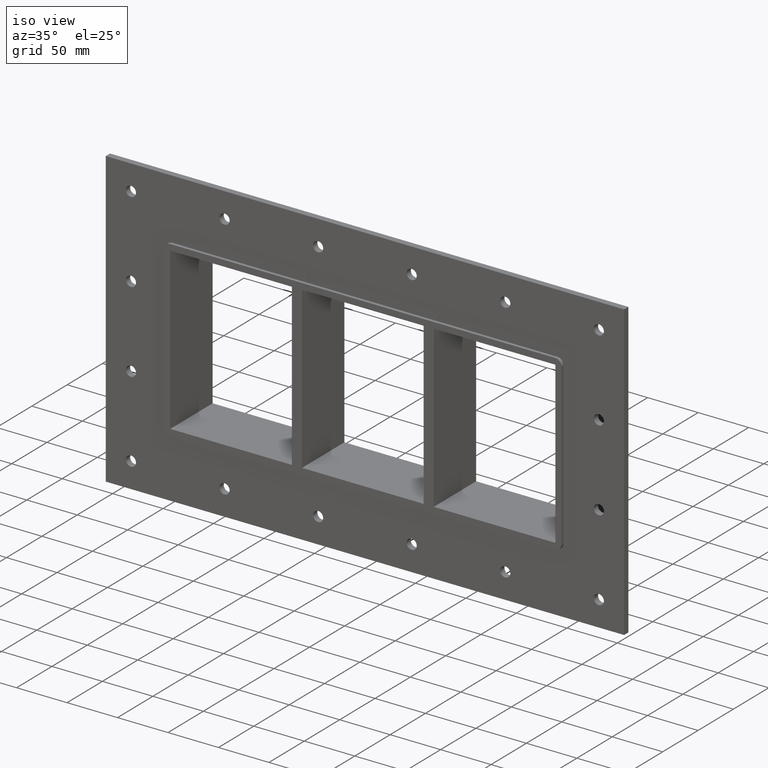
[diagram: clean part render]
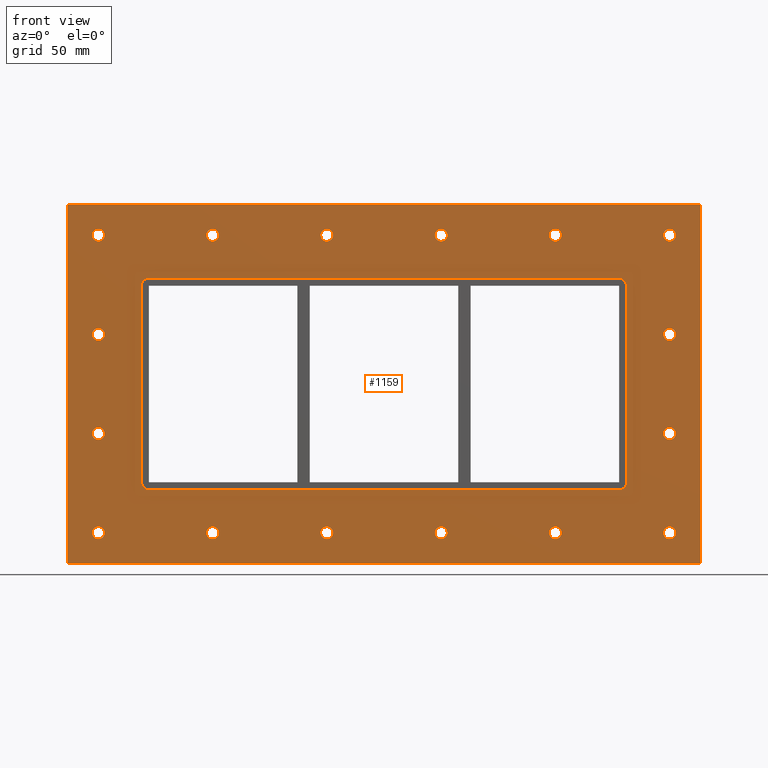
[diagram: tour spotlight — one face highlighted and labeled with its STEP entity id]
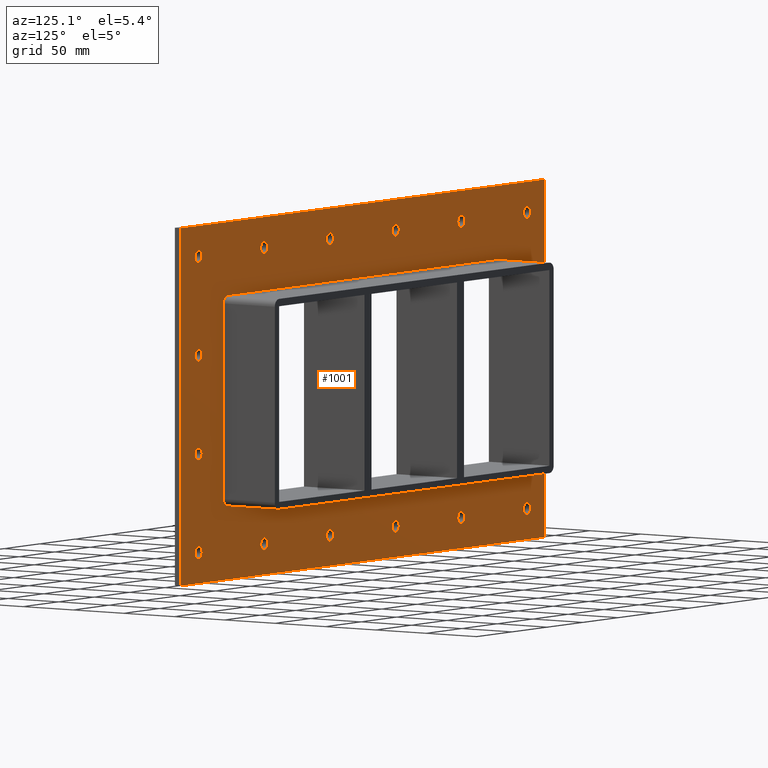
[diagram: tour spotlight — one face highlighted and labeled with its STEP entity id]
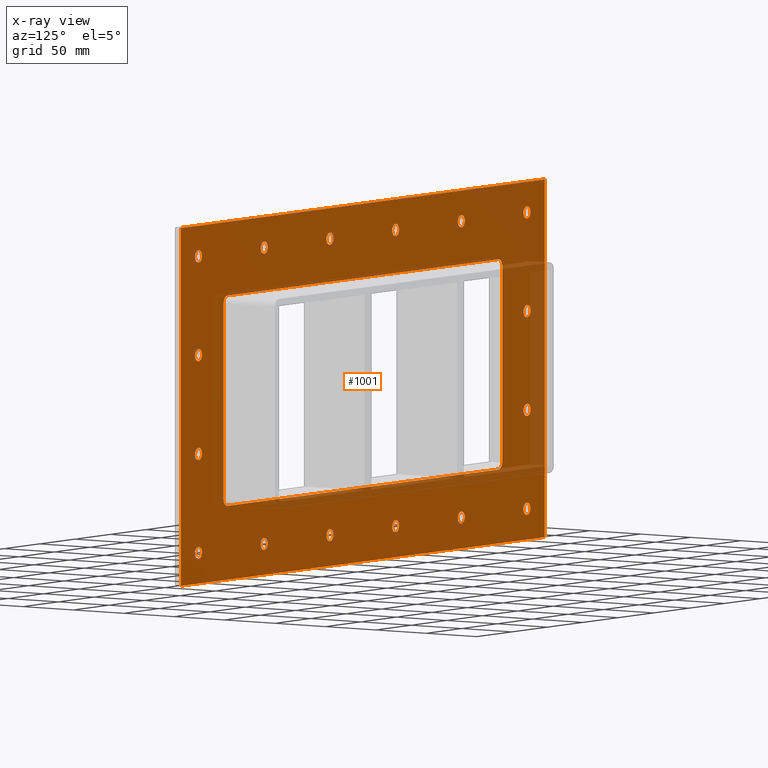
[diagram: x-ray of the same camera — body ghosted, this tour face saturated]
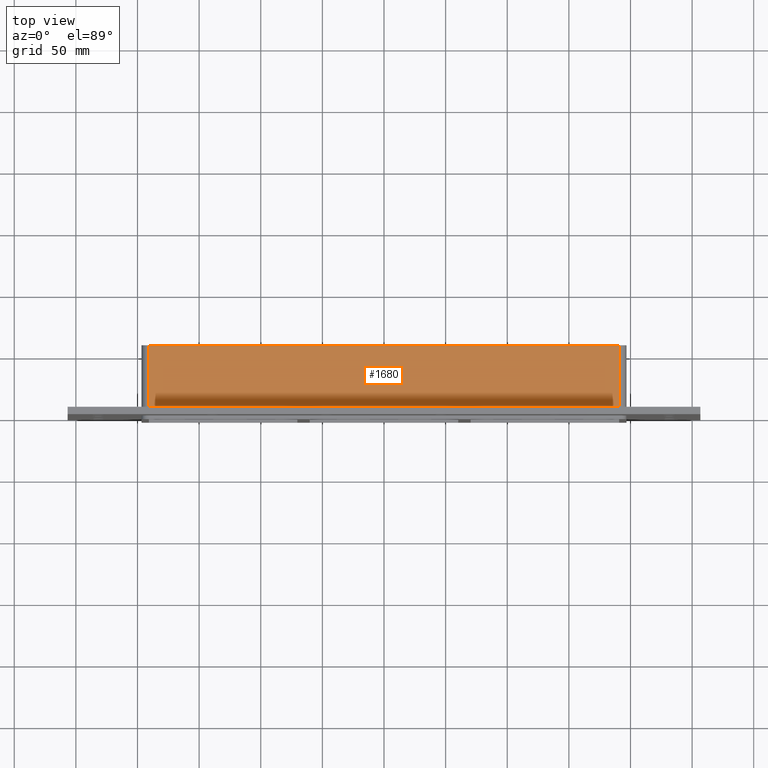
[diagram: tour spotlight — one face highlighted and labeled with its STEP entity id]
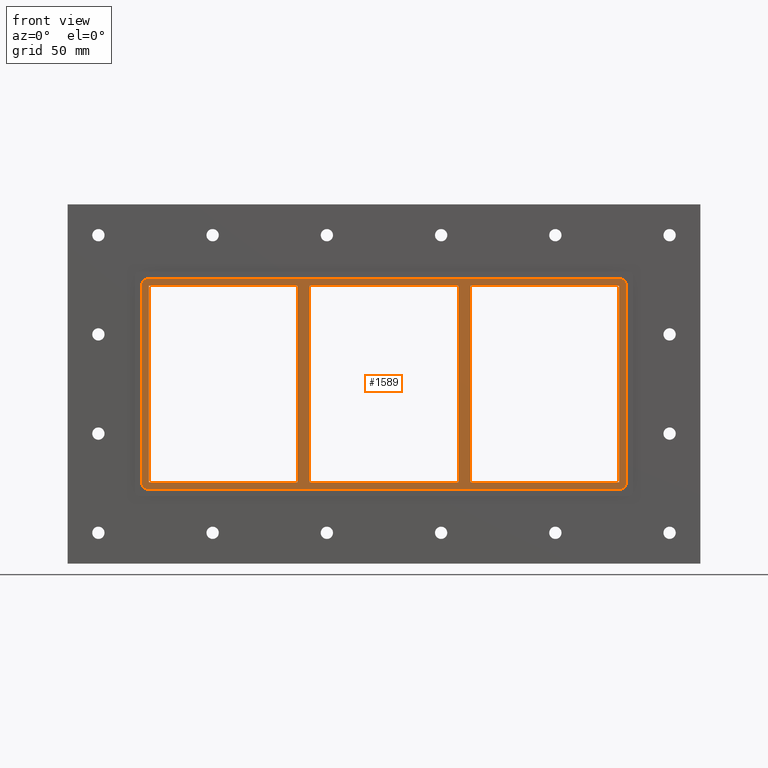
[diagram: tour spotlight — one face highlighted and labeled with its STEP entity id]
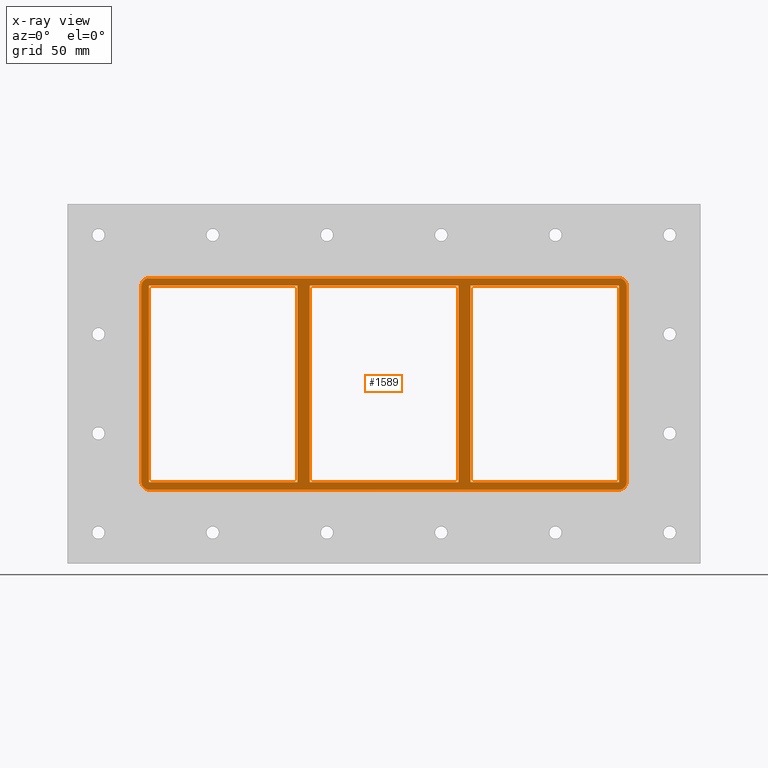
[diagram: x-ray of the same camera — body ghosted, this tour face saturated]
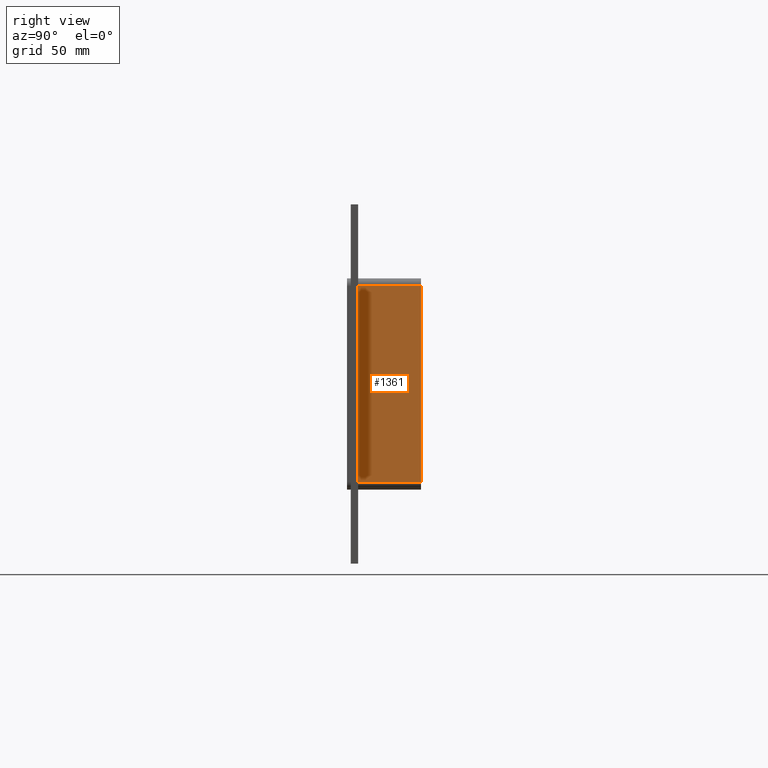
[diagram: tour spotlight — one face highlighted and labeled with its STEP entity id]
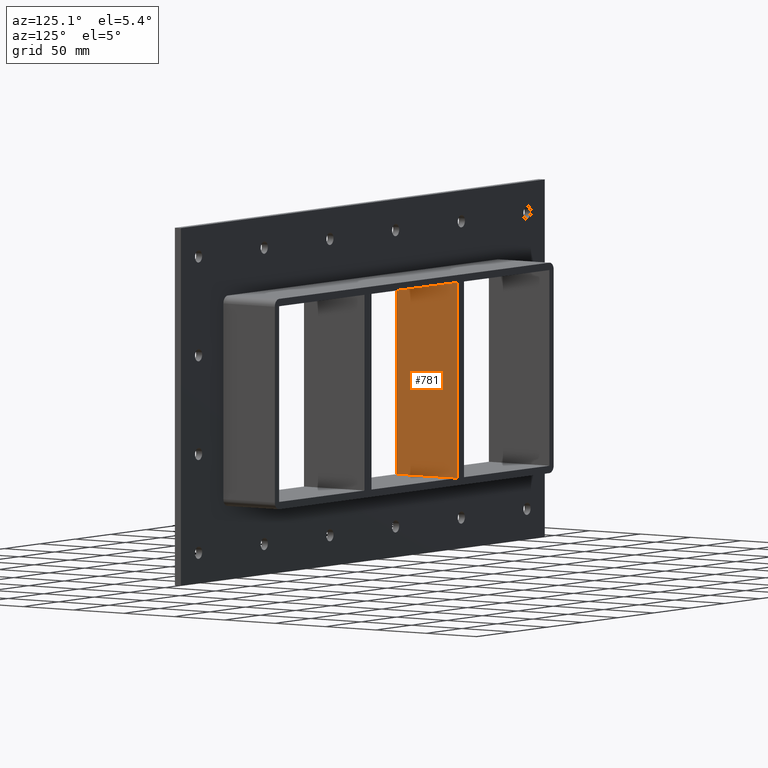
[diagram: tour spotlight — one face highlighted and labeled with its STEP entity id]
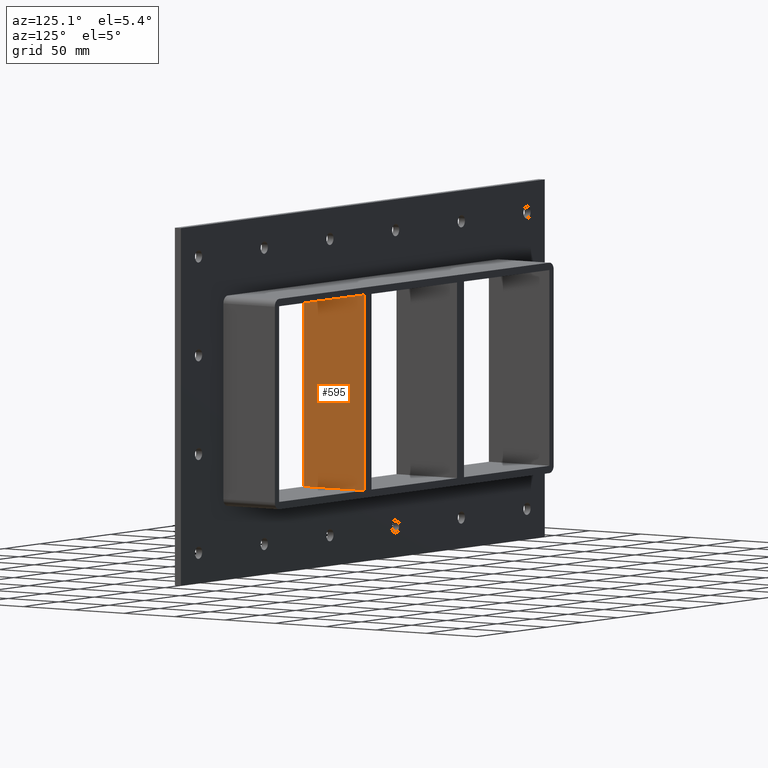
[diagram: tour spotlight — one face highlighted and labeled with its STEP entity id]
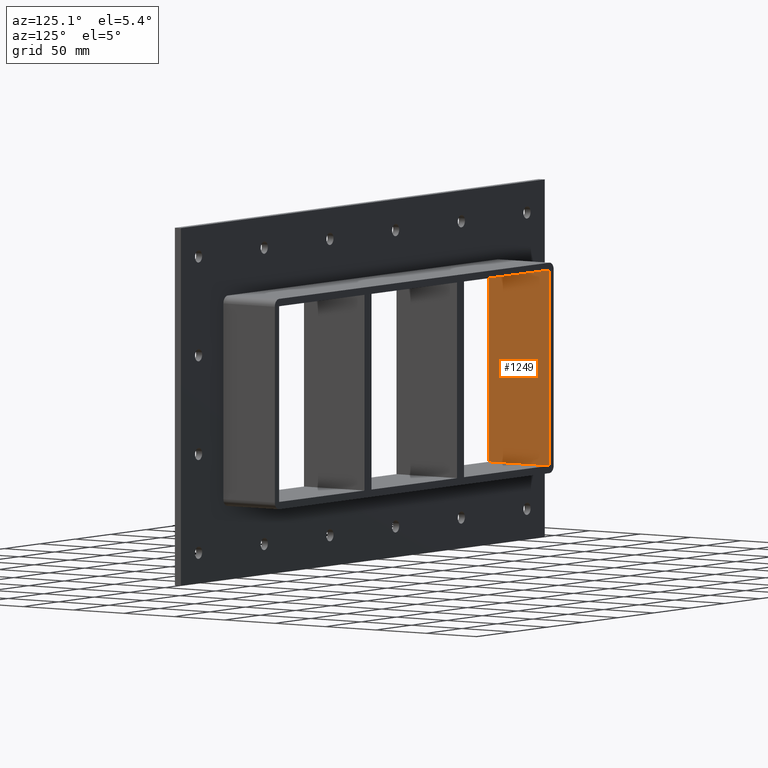
[diagram: tour spotlight — one face highlighted and labeled with its STEP entity id]
A machine part: a face-by-face anatomy tour. The part has 52 B-rep faces; the first image is the clean iso view, then the 8 largest visible faces are spotlighted one at a time (largest first), each with its STEP entity span.

Face 1 — front view, entity #1159. In plain terms, the highlighted planar face has unit normal (0, 1, 0).
Definition (entity closure, byte-faithful):
#84=CARTESIAN_POINT('',(-226.75000000000023,0.0,-120.75));
#85=VERTEX_POINT('',#84);
#86=CARTESIAN_POINT('',(-231.75000000000023,0.0,-120.75));
#87=DIRECTION('',(0.0,1.0,0.0));
#88=DIRECTION('',(1.0,0.0,0.0));
#89=AXIS2_PLACEMENT_3D('',#86,#87,#88);
#90=CIRCLE('',#89,5.0);
#91=EDGE_CURVE('',#85,#85,#90,.T.);
#112=CARTESIAN_POINT('',(236.74999999999986,0.0,-40.249999999999986));
#113=VERTEX_POINT('',#112);
#114=CARTESIAN_POINT('',(231.74999999999986,0.0,-40.249999999999986));
#115=DIRECTION('',(0.0,1.0,0.0));
#116=DIRECTION('',(1.0,0.0,0.0));
#117=AXIS2_PLACEMENT_3D('',#114,#115,#116);
#118=CIRCLE('',#117,5.0);
#119=EDGE_CURVE('',#113,#113,#118,.T.);
#140=CARTESIAN_POINT('',(-226.75000000000023,0.0,-40.249999999999986));
#141=VERTEX_POINT('',#140);
#142=CARTESIAN_POINT('',(-231.75000000000023,0.0,-40.249999999999986));
#143=DIRECTION('',(0.0,1.0,0.0));
#144=DIRECTION('',(1.0,0.0,0.0));
#145=AXIS2_PLACEMENT_3D('',#142,#143,#144);
#146=CIRCLE('',#145,5.0);
#147=EDGE_CURVE('',#141,#141,#146,.T.);
#168=CARTESIAN_POINT('',(236.74999999999986,0.0,40.250000000000021));
#169=VERTEX_POINT('',#168);
#170=CARTESIAN_POINT('',(231.74999999999986,0.0,40.250000000000021));
#171=DIRECTION('',(0.0,1.0,0.0));
#172=DIRECTION('',(1.0,0.0,0.0));
#173=AXIS2_PLACEMENT_3D('',#170,#171,#172);
#174=CIRCLE('',#173,5.0);
#175=EDGE_CURVE('',#169,#169,#174,.T.);
#196=CARTESIAN_POINT('',(-226.75000000000023,0.0,40.250000000000021));
#197=VERTEX_POINT('',#196);
#198=CARTESIAN_POINT('',(-231.75000000000023,0.0,40.250000000000021));
#199=DIRECTION('',(0.0,1.0,0.0));
#200=DIRECTION('',(1.0,0.0,0.0));
#201=AXIS2_PLACEMENT_3D('',#198,#199,#200);
#202=CIRCLE('',#201,5.0);
#203=EDGE_CURVE('',#197,#197,#202,.T.);
#224=CARTESIAN_POINT('',(-134.05000000000018,0.0,120.75000000000003));
#225=VERTEX_POINT('',#224);
#226=CARTESIAN_POINT('',(-139.05000000000018,0.0,120.75000000000003));
#227=DIRECTION('',(0.0,1.0,0.0));
#228=DIRECTION('',(1.0,0.0,0.0));
#229=AXIS2_PLACEMENT_3D('',#226,#227,#228);
#230=CIRCLE('',#229,5.0);
#231=EDGE_CURVE('',#225,#225,#230,.T.);
#252=CARTESIAN_POINT('',(-134.05000000000018,0.0,-120.75));
#253=VERTEX_POINT('',#252);
#254=CARTESIAN_POINT('',(-139.05000000000018,0.0,-120.75));
#255=DIRECTION('',(0.0,1.0,0.0));
#256=DIRECTION('',(1.0,0.0,0.0));
#257=AXIS2_PLACEMENT_3D('',#254,#255,#256);
#258=CIRCLE('',#257,5.0);
#259=EDGE_CURVE('',#253,#253,#258,.T.);
#280=CARTESIAN_POINT('',(-41.350000000000136,0.0,120.75000000000003));
#281=VERTEX_POINT('',#280);
#282=CARTESIAN_POINT('',(-46.350000000000136,0.0,120.75000000000003));
#283=DIRECTION('',(0.0,1.0,0.0));
#284=DIRECTION('',(1.0,0.0,0.0));
#285=AXIS2_PLACEMENT_3D('',#282,#283,#284);
#286=CIRCLE('',#285,5.0);
#287=EDGE_CURVE('',#281,#281,#286,.T.);
#308=CARTESIAN_POINT('',(-41.350000000000136,0.0,-120.75));
#309=VERTEX_POINT('',#308);
#310=CARTESIAN_POINT('',(-46.350000000000136,0.0,-120.75));
#311=DIRECTION('',(0.0,1.0,0.0));
#312=DIRECTION('',(1.0,0.0,0.0));
#313=AXIS2_PLACEMENT_3D('',#310,#311,#312);
#314=CIRCLE('',#313,5.0);
#315=EDGE_CURVE('',#309,#309,#314,.T.);
#336=CARTESIAN_POINT('',(51.349999999999838,0.0,120.75000000000003));
#337=VERTEX_POINT('',#336);
#338=CARTESIAN_POINT('',(46.349999999999838,0.0,120.75000000000003));
#339=DIRECTION('',(0.0,1.0,0.0));
#340=DIRECTION('',(1.0,0.0,0.0));
#341=AXIS2_PLACEMENT_3D('',#338,#339,#340);
#342=CIRCLE('',#341,5.0);
#343=EDGE_CURVE('',#337,#337,#342,.T.);
#364=CARTESIAN_POINT('',(51.349999999999838,0.0,-120.75));
#365=VERTEX_POINT('',#364);
#366=CARTESIAN_POINT('',(46.349999999999838,0.0,-120.75));
#367=DIRECTION('',(0.0,1.0,0.0));
#368=DIRECTION('',(1.0,0.0,0.0));
#369=AXIS2_PLACEMENT_3D('',#366,#367,#368);
#370=CIRCLE('',#369,5.0);
#371=EDGE_CURVE('',#365,#365,#370,.T.);
#392=CARTESIAN_POINT('',(144.04999999999984,0.0,120.75000000000003));
#393=VERTEX_POINT('',#392);
#394=CARTESIAN_POINT('',(139.04999999999984,0.0,120.75000000000003));
#395=DIRECTION('',(0.0,1.0,0.0));
#396=DIRECTION('',(1.0,0.0,0.0));
#397=AXIS2_PLACEMENT_3D('',#394,#395,#396);
#398=CIRCLE('',#397,5.0);
#399=EDGE_CURVE('',#393,#393,#398,.T.);
#420=CARTESIAN_POINT('',(144.04999999999984,0.0,-120.75));
#421=VERTEX_POINT('',#420);
#422=CARTESIAN_POINT('',(139.04999999999984,0.0,-120.75));
#423=DIRECTION('',(0.0,1.0,0.0));
#424=DIRECTION('',(1.0,0.0,0.0));
#425=AXIS2_PLACEMENT_3D('',#422,#423,#424);
#426=CIRCLE('',#425,5.0);
#427=EDGE_CURVE('',#421,#421,#426,.T.);
#448=CARTESIAN_POINT('',(236.74999999999986,0.0,-120.75));
#449=VERTEX_POINT('',#448);
#450=CARTESIAN_POINT('',(231.74999999999986,0.0,-120.75));
#451=DIRECTION('',(0.0,1.0,0.0));
#452=DIRECTION('',(1.0,0.0,0.0));
#453=AXIS2_PLACEMENT_3D('',#450,#451,#452);
#454=CIRCLE('',#453,5.0);
#455=EDGE_CURVE('',#449,#449,#454,.T.);
#476=CARTESIAN_POINT('',(-226.75000000000023,0.0,120.75000000000003));
#477=VERTEX_POINT('',#476);
#478=CARTESIAN_POINT('',(-231.75000000000023,0.0,120.75000000000003));
#479=DIRECTION('',(0.0,1.0,0.0));
#480=DIRECTION('',(1.0,0.0,0.0));
#481=AXIS2_PLACEMENT_3D('',#478,#479,#480);
#482=CIRCLE('',#481,5.0);
#483=EDGE_CURVE('',#477,#477,#482,.T.);
#504=CARTESIAN_POINT('',(236.74999999999986,0.0,120.75000000000003));
#505=VERTEX_POINT('',#504);
#506=CARTESIAN_POINT('',(231.74999999999986,0.0,120.75000000000003));
#507=DIRECTION('',(0.0,1.0,0.0));
#508=DIRECTION('',(1.0,0.0,0.0));
#509=AXIS2_PLACEMENT_3D('',#506,#507,#508);
#510=CIRCLE('',#509,5.0);
#511=EDGE_CURVE('',#505,#505,#510,.T.);
#1002=CARTESIAN_POINT('',(1.588791E-014,0.0,1.059194E-014));
#1003=DIRECTION('',(0.0,1.0,0.0));
#1004=DIRECTION('',(0.0,0.0,1.0));
#1005=AXIS2_PLACEMENT_3D('',#1002,#1003,#1004);
#1006=PLANE('',#1005);
#1007=CARTESIAN_POINT('',(-256.75000000000006,0.0,145.75));
#1008=VERTEX_POINT('',#1007);
#1009=CARTESIAN_POINT('',(256.75000000000011,0.0,145.75));
#1010=VERTEX_POINT('',#1009);
#1011=CARTESIAN_POINT('',(-256.75000000000006,0.0,145.75));
#1012=DIRECTION('',(1.0,0.0,0.0));
#1013=VECTOR('',#1012,513.50000000000023);
#1014=LINE('',#1011,#1013);
#1015=EDGE_CURVE('',#1008,#1010,#1014,.T.);
#1016=ORIENTED_EDGE('',*,*,#1015,.F.);
#1017=CARTESIAN_POINT('',(-256.75000000000006,0.0,-145.75));
#1018=VERTEX_POINT('',#1017);
#1019=CARTESIAN_POINT('',(-256.75000000000006,0.0,-145.75));
#1020=DIRECTION('',(0.0,0.0,1.0));
#1021=VECTOR('',#1020,291.5);
#1022=LINE('',#1019,#1021);
#1023=EDGE_CURVE('',#1018,#1008,#1022,.T.);
#1024=ORIENTED_EDGE('',*,*,#1023,.F.);
#1025=CARTESIAN_POINT('',(256.75000000000011,0.0,-145.75));
#1026=VERTEX_POINT('',#1025);
#1027=CARTESIAN_POINT('',(256.75000000000011,0.0,-145.75));
#1028=DIRECTION('',(-1.0,0.0,0.0));
#1029=VECTOR('',#1028,513.50000000000023);
#1030=LINE('',#1027,#1029);
#1031=EDGE_CURVE('',#1026,#1018,#1030,.T.);
#1032=ORIENTED_EDGE('',*,*,#1031,.F.);
#1033=CARTESIAN_POINT('',(256.75000000000011,0.0,145.75));
#1034=DIRECTION('',(0.0,0.0,-1.0));
#1035=VECTOR('',#1034,291.5);
#1036=LINE('',#1033,#1035);
#1037=EDGE_CURVE('',#1010,#1026,#1036,.T.);
#1038=ORIENTED_EDGE('',*,*,#1037,.F.);
#1039=EDGE_LOOP('',(#1016,#1024,#1032,#1038));
#1040=FACE_OUTER_BOUND('',#1039,.T.);
#1041=ORIENTED_EDGE('',*,*,#91,.T.);
#1042=EDGE_LOOP('',(#1041));
#1043=FACE_BOUND('',#1042,.T.);
#1044=ORIENTED_EDGE('',*,*,#119,.T.);
#1045=EDGE_LOOP('',(#1044));
#1046=FACE_BOUND('',#1045,.T.);
#1047=ORIENTED_EDGE('',*,*,#147,.T.);
#1048=EDGE_LOOP('',(#1047));
#1049=FACE_BOUND('',#1048,.T.);
#1050=ORIENTED_EDGE('',*,*,#175,.T.);
#1051=EDGE_LOOP('',(#1050));
#1052=FACE_BOUND('',#1051,.T.);
#1053=ORIENTED_EDGE('',*,*,#203,.T.);
#1054=EDGE_LOOP('',(#1053));
#1055=FACE_BOUND('',#1054,.T.);
#1056=ORIENTED_EDGE('',*,*,#231,.T.);
#1057=EDGE_LOOP('',(#1056));
#1058=FACE_BOUND('',#1057,.T.);
#1059=ORIENTED_EDGE('',*,*,#259,.T.);
#1060=EDGE_LOOP('',(#1059));
#1061=FACE_BOUND('',#1060,.T.);
#1062=ORIENTED_EDGE('',*,*,#287,.T.);
#1063=EDGE_LOOP('',(#1062));
#1064=FACE_BOUND('',#1063,.T.);
#1065=ORIENTED_EDGE('',*,*,#315,.T.);
#1066=EDGE_LOOP('',(#1065));
#1067=FACE_BOUND('',#1066,.T.);
#1068=ORIENTED_EDGE('',*,*,#343,.T.);
#1069=EDGE_LOOP('',(#1068));
#1070=FACE_BOUND('',#1069,.T.);
#1071=ORIENTED_EDGE('',*,*,#371,.T.);
#1072=EDGE_LOOP('',(#1071));
#1073=FACE_BOUND('',#1072,.T.);
#1074=ORIENTED_EDGE('',*,*,#399,.T.);
#1075=EDGE_LOOP('',(#1074));
#1076=FACE_BOUND('',#1075,.T.);
#1077=ORIENTED_EDGE('',*,*,#427,.T.);
#1078=EDGE_LOOP('',(#1077));
#1079=FACE_BOUND('',#1078,.T.);
#1080=ORIENTED_EDGE('',*,*,#455,.T.);
#1081=EDGE_LOOP('',(#1080));
#1082=FACE_BOUND('',#1081,.T.);
#1083=ORIENTED_EDGE('',*,*,#483,.T.);
#1084=EDGE_LOOP('',(#1083));
#1085=FACE_BOUND('',#1084,.T.);
#1086=ORIENTED_EDGE('',*,*,#511,.T.);
#1087=EDGE_LOOP('',(#1086));
#1088=FACE_BOUND('',#1087,.T.);
#1089=CARTESIAN_POINT('',(-196.75000000000006,0.0,-79.750000000000028));
#1090=VERTEX_POINT('',#1089);
#1091=CARTESIAN_POINT('',(-190.75000000000003,0.0,-85.750000000000028));
#1092=VERTEX_POINT('',#1091);
#1093=CARTESIAN_POINT('',(-190.75000000000003,0.0,-79.750000000000028));
#1094=DIRECTION('',(0.0,-1.0,0.0));
#1095=DIRECTION('',(-0.707106781186549,0.0,-0.707106781186546));
#1096=AXIS2_PLACEMENT_3D('',#1093,#1094,#1095);
#1097=CIRCLE('',#1096,6.000000000000001);
#1098=EDGE_CURVE('',#1090,#1092,#1097,.T.);
#1099=ORIENTED_EDGE('',*,*,#1098,.F.);
#1100=CARTESIAN_POINT('',(-196.75000000000006,0.0,79.750000000000028));
#1101=VERTEX_POINT('',#1100);
#1102=CARTESIAN_POINT('',(-196.75000000000006,0.0,79.750000000000028));
#1103=DIRECTION('',(0.0,0.0,-1.0));
#1104=VECTOR('',#1103,159.50000000000006);
#1105=LINE('',#1102,#1104);
#1106=EDGE_CURVE('',#1101,#1090,#1105,.T.);
#1107=ORIENTED_EDGE('',*,*,#1106,.F.);
#1108=CARTESIAN_POINT('',(-190.75000000000003,0.0,85.750000000000028));
#1109=VERTEX_POINT('',#1108);
#1110=CARTESIAN_POINT('',(-190.75000000000003,0.0,79.750000000000028));
#1111=DIRECTION('',(0.0,-1.0,0.0));
#1112=DIRECTION('',(-0.707106781186549,0.0,0.707106781186546));
#1113=AXIS2_PLACEMENT_3D('',#1110,#1111,#1112);
#1114=CIRCLE('',#1113,6.000000000000001);
#1115=EDGE_CURVE('',#1109,#1101,#1114,.T.);
#1116=ORIENTED_EDGE('',*,*,#1115,.F.);
#1117=CARTESIAN_POINT('',(190.75000000000003,0.0,85.750000000000028));
#1118=VERTEX_POINT('',#1117);
#1119=CARTESIAN_POINT('',(190.75000000000003,0.0,85.750000000000028));
#1120=DIRECTION('',(-1.0,0.0,0.0));
#1121=VECTOR('',#1120,381.50000000000006);
#1122=LINE('',#1119,#1121);
#1123=EDGE_CURVE('',#1118,#1109,#1122,.T.);
#1124=ORIENTED_EDGE('',*,*,#1123,.F.);
#1125=CARTESIAN_POINT('',(196.75000000000006,0.0,79.750000000000028));
#1126=VERTEX_POINT('',#1125);
#1127=CARTESIAN_POINT('',(190.75000000000003,0.0,79.750000000000028));
#1128=DIRECTION('',(0.0,-1.0,0.0));
#1129=DIRECTION('',(0.70710678118655,0.0,0.707106781186545));
#1130=AXIS2_PLACEMENT_3D('',#1127,#1128,#1129);
#1131=CIRCLE('',#1130,6.000000000000001);
#1132=EDGE_CURVE('',#1126,#1118,#1131,.T.);
#1133=ORIENTED_EDGE('',*,*,#1132,.F.);
#1134=CARTESIAN_POINT('',(196.75000000000006,0.0,-79.750000000000028));
#1135=VERTEX_POINT('',#1134);
#1136=CARTESIAN_POINT('',(196.75000000000006,0.0,-79.750000000000028));
#1137=DIRECTION('',(0.0,0.0,1.0));
#1138=VECTOR('',#1137,159.50000000000006);
#1139=LINE('',#1136,#1138);
#1140=EDGE_CURVE('',#1135,#1126,#1139,.T.);
#1141=ORIENTED_EDGE('',*,*,#1140,.F.);
#1142=CARTESIAN_POINT('',(190.75000000000003,0.0,-85.750000000000028));
#1143=VERTEX_POINT('',#1142);
#1144=CARTESIAN_POINT('',(190.75000000000003,0.0,-79.750000000000028));
#1145=DIRECTION('',(0.0,-1.0,0.0));
#1146=DIRECTION('',(0.707106781186549,0.0,-0.707106781186546));
#1147=AXIS2_PLACEMENT_3D('',#1144,#1145,#1146);
#1148=CIRCLE('',#1147,6.000000000000001);
#1149=EDGE_CURVE('',#1143,#1135,#1148,.T.);
#1150=ORIENTED_EDGE('',*,*,#1149,.F.);
#1151=CARTESIAN_POINT('',(-190.75000000000003,0.0,-85.750000000000028));
#1152=DIRECTION('',(1.0,0.0,0.0));
#1153=VECTOR('',#1152,381.50000000000006);
#1154=LINE('',#1151,#1153);
#1155=EDGE_CURVE('',#1092,#1143,#1154,.T.);
#1156=ORIENTED_EDGE('',*,*,#1155,.F.);
#1157=EDGE_LOOP('',(#1099,#1107,#1116,#1124,#1133,#1141,#1150,#1156));
#1158=FACE_BOUND('',#1157,.T.);
#1159=ADVANCED_FACE('',(#1040,#1043,#1046,#1049,#1052,#1055,#1058,#1061,#1064,#1067,#1070,#1073,#1076,#1079,#1082,#1085,#1088,#1158),#1006,.F.);

Face 2 — auxiliary view, entity #1001. An x-ray twin of the same camera follows (body ghosted, this face saturated) — the face is partly hidden behind the body. In plain terms, the highlighted planar face has unit normal (0, 1, 0).
Definition (entity closure, byte-faithful):
#73=CARTESIAN_POINT('',(-236.75000000000023,6.000000000000014,-120.75));
#74=VERTEX_POINT('',#73);
#75=CARTESIAN_POINT('',(-231.75000000000023,6.000000000000014,-120.75));
#76=DIRECTION('',(0.0,-1.0,0.0));
#77=DIRECTION('',(1.0,0.0,0.0));
#78=AXIS2_PLACEMENT_3D('',#75,#76,#77);
#79=CIRCLE('',#78,5.0);
#80=EDGE_CURVE('',#74,#74,#79,.T.);
#101=CARTESIAN_POINT('',(226.74999999999986,6.000000000000014,-40.249999999999986));
#102=VERTEX_POINT('',#101);
#103=CARTESIAN_POINT('',(231.74999999999986,6.000000000000014,-40.249999999999986));
#104=DIRECTION('',(0.0,-1.0,0.0));
#105=DIRECTION('',(1.0,0.0,0.0));
#106=AXIS2_PLACEMENT_3D('',#103,#104,#105);
#107=CIRCLE('',#106,5.0);
#108=EDGE_CURVE('',#102,#102,#107,.T.);
#129=CARTESIAN_POINT('',(-236.75000000000023,6.000000000000014,-40.249999999999986));
#130=VERTEX_POINT('',#129);
#131=CARTESIAN_POINT('',(-231.75000000000023,6.000000000000014,-40.249999999999986));
#132=DIRECTION('',(0.0,-1.0,0.0));
#133=DIRECTION('',(1.0,0.0,0.0));
#134=AXIS2_PLACEMENT_3D('',#131,#132,#133);
#135=CIRCLE('',#134,5.0);
#136=EDGE_CURVE('',#130,#130,#135,.T.);
#157=CARTESIAN_POINT('',(226.74999999999986,6.000000000000014,40.250000000000021));
#158=VERTEX_POINT('',#157);
#159=CARTESIAN_POINT('',(231.74999999999986,6.000000000000014,40.250000000000021));
#160=DIRECTION('',(0.0,-1.0,0.0));
#161=DIRECTION('',(1.0,0.0,0.0));
#162=AXIS2_PLACEMENT_3D('',#159,#160,#161);
#163=CIRCLE('',#162,5.0);
#164=EDGE_CURVE('',#158,#158,#163,.T.);
#185=CARTESIAN_POINT('',(-236.75000000000023,6.000000000000014,40.250000000000021));
#186=VERTEX_POINT('',#185);
#187=CARTESIAN_POINT('',(-231.75000000000023,6.000000000000014,40.250000000000021));
#188=DIRECTION('',(0.0,-1.0,0.0));
#189=DIRECTION('',(1.0,0.0,0.0));
#190=AXIS2_PLACEMENT_3D('',#187,#188,#189);
#191=CIRCLE('',#190,5.0);
#192=EDGE_CURVE('',#186,#186,#191,.T.);
#213=CARTESIAN_POINT('',(-144.05000000000018,6.000000000000014,120.75000000000003));
#214=VERTEX_POINT('',#213);
#215=CARTESIAN_POINT('',(-139.05000000000018,6.000000000000014,120.75000000000003));
#216=DIRECTION('',(0.0,-1.0,0.0));
#217=DIRECTION('',(1.0,0.0,0.0));
#218=AXIS2_PLACEMENT_3D('',#215,#216,#217);
#219=CIRCLE('',#218,5.0);
#220=EDGE_CURVE('',#214,#214,#219,.T.);
#241=CARTESIAN_POINT('',(-144.05000000000018,6.000000000000014,-120.75));
#242=VERTEX_POINT('',#241);
#243=CARTESIAN_POINT('',(-139.05000000000018,6.000000000000014,-120.75));
#244=DIRECTION('',(0.0,-1.0,0.0));
#245=DIRECTION('',(1.0,0.0,0.0));
#246=AXIS2_PLACEMENT_3D('',#243,#244,#245);
#247=CIRCLE('',#246,5.0);
#248=EDGE_CURVE('',#242,#242,#247,.T.);
#269=CARTESIAN_POINT('',(-51.350000000000136,6.000000000000014,120.75000000000003));
#270=VERTEX_POINT('',#269);
#271=CARTESIAN_POINT('',(-46.350000000000136,6.000000000000014,120.75000000000003));
#272=DIRECTION('',(0.0,-1.0,0.0));
#273=DIRECTION('',(1.0,0.0,0.0));
#274=AXIS2_PLACEMENT_3D('',#271,#272,#273);
#275=CIRCLE('',#274,5.0);
#276=EDGE_CURVE('',#270,#270,#275,.T.);
#297=CARTESIAN_POINT('',(-51.350000000000136,6.000000000000014,-120.75));
#298=VERTEX_POINT('',#297);
#299=CARTESIAN_POINT('',(-46.350000000000136,6.000000000000014,-120.75));
#300=DIRECTION('',(0.0,-1.0,0.0));
#301=DIRECTION('',(1.0,0.0,0.0));
#302=AXIS2_PLACEMENT_3D('',#299,#300,#301);
#303=CIRCLE('',#302,5.0);
#304=EDGE_CURVE('',#298,#298,#303,.T.);
#325=CARTESIAN_POINT('',(41.349999999999838,6.000000000000014,120.75000000000003));
#326=VERTEX_POINT('',#325);
#327=CARTESIAN_POINT('',(46.349999999999838,6.000000000000014,120.75000000000003));
#328=DIRECTION('',(0.0,-1.0,0.0));
#329=DIRECTION('',(1.0,0.0,0.0));
#330=AXIS2_PLACEMENT_3D('',#327,#328,#329);
#331=CIRCLE('',#330,5.0);
#332=EDGE_CURVE('',#326,#326,#331,.T.);
#353=CARTESIAN_POINT('',(41.349999999999838,6.000000000000014,-120.75));
#354=VERTEX_POINT('',#353);
#355=CARTESIAN_POINT('',(46.349999999999838,6.000000000000014,-120.75));
#356=DIRECTION('',(0.0,-1.0,0.0));
#357=DIRECTION('',(1.0,0.0,0.0));
#358=AXIS2_PLACEMENT_3D('',#355,#356,#357);
#359=CIRCLE('',#358,5.0);
#360=EDGE_CURVE('',#354,#354,#359,.T.);
#381=CARTESIAN_POINT('',(134.04999999999984,6.000000000000014,120.75000000000003));
#382=VERTEX_POINT('',#381);
#383=CARTESIAN_POINT('',(139.04999999999984,6.000000000000014,120.75000000000003));
#384=DIRECTION('',(0.0,-1.0,0.0));
#385=DIRECTION('',(1.0,0.0,0.0));
#386=AXIS2_PLACEMENT_3D('',#383,#384,#385);
#387=CIRCLE('',#386,5.0);
#388=EDGE_CURVE('',#382,#382,#387,.T.);
#409=CARTESIAN_POINT('',(134.04999999999984,6.000000000000014,-120.75));
#410=VERTEX_POINT('',#409);
#411=CARTESIAN_POINT('',(139.04999999999984,6.000000000000014,-120.75));
#412=DIRECTION('',(0.0,-1.0,0.0));
#413=DIRECTION('',(1.0,0.0,0.0));
#414=AXIS2_PLACEMENT_3D('',#411,#412,#413);
#415=CIRCLE('',#414,5.0);
#416=EDGE_CURVE('',#410,#410,#415,.T.);
#437=CARTESIAN_POINT('',(226.74999999999986,6.000000000000014,-120.75));
#438=VERTEX_POINT('',#437);
#439=CARTESIAN_POINT('',(231.74999999999986,6.000000000000014,-120.75));
#440=DIRECTION('',(0.0,-1.0,0.0));
#441=DIRECTION('',(1.0,0.0,0.0));
#442=AXIS2_PLACEMENT_3D('',#439,#440,#441);
#443=CIRCLE('',#442,5.0);
#444=EDGE_CURVE('',#438,#438,#443,.T.);
#465=CARTESIAN_POINT('',(-236.75000000000023,6.000000000000014,120.75000000000003));
#466=VERTEX_POINT('',#465);
#467=CARTESIAN_POINT('',(-231.75000000000023,6.000000000000014,120.75000000000003));
#468=DIRECTION('',(0.0,-1.0,0.0));
#469=DIRECTION('',(1.0,0.0,0.0));
#470=AXIS2_PLACEMENT_3D('',#467,#468,#469);
#471=CIRCLE('',#470,5.0);
#472=EDGE_CURVE('',#466,#466,#471,.T.);
#493=CARTESIAN_POINT('',(226.74999999999986,6.000000000000014,120.75000000000003));
#494=VERTEX_POINT('',#493);
#495=CARTESIAN_POINT('',(231.74999999999986,6.000000000000014,120.75000000000003));
#496=DIRECTION('',(0.0,-1.0,0.0));
#497=DIRECTION('',(1.0,0.0,0.0));
#498=AXIS2_PLACEMENT_3D('',#495,#496,#497);
#499=CIRCLE('',#498,5.0);
#500=EDGE_CURVE('',#494,#494,#499,.T.);
#844=CARTESIAN_POINT('',(1.588791E-014,6.000000000000001,1.059194E-014));
#845=DIRECTION('',(0.0,1.0,0.0));
#846=DIRECTION('',(0.0,0.0,1.0));
#847=AXIS2_PLACEMENT_3D('',#844,#845,#846);
#848=PLANE('',#847);
#849=CARTESIAN_POINT('',(-256.75000000000006,6.000000000000001,145.75));
#850=VERTEX_POINT('',#849);
#851=CARTESIAN_POINT('',(256.75000000000017,6.000000000000001,145.75));
#852=VERTEX_POINT('',#851);
#853=CARTESIAN_POINT('',(-256.75000000000006,6.000000000000001,145.75));
#854=DIRECTION('',(1.0,0.0,0.0));
#855=VECTOR('',#854,513.50000000000023);
#856=LINE('',#853,#855);
#857=EDGE_CURVE('',#850,#852,#856,.T.);
#858=ORIENTED_EDGE('',*,*,#857,.T.);
#859=CARTESIAN_POINT('',(256.75000000000017,6.000000000000001,-145.74999999999997));
#860=VERTEX_POINT('',#859);
#861=CARTESIAN_POINT('',(256.75000000000011,6.000000000000001,145.75));
#862=DIRECTION('',(0.0,0.0,-1.0));
#863=VECTOR('',#862,291.5);
#864=LINE('',#861,#863);
#865=EDGE_CURVE('',#852,#860,#864,.T.);
#866=ORIENTED_EDGE('',*,*,#865,.T.);
#867=CARTESIAN_POINT('',(-256.75000000000006,6.000000000000001,-145.74999999999997));
#868=VERTEX_POINT('',#867);
#869=CARTESIAN_POINT('',(256.75000000000011,6.000000000000001,-145.75));
#870=DIRECTION('',(-1.0,0.0,0.0));
#871=VECTOR('',#870,513.50000000000023);
#872=LINE('',#869,#871);
#873=EDGE_CURVE('',#860,#868,#872,.T.);
#874=ORIENTED_EDGE('',*,*,#873,.T.);
#875=CARTESIAN_POINT('',(-256.75000000000006,6.000000000000001,-145.75));
#876=DIRECTION('',(0.0,0.0,1.0));
#877=VECTOR('',#876,291.5);
#878=LINE('',#875,#877);
#879=EDGE_CURVE('',#868,#850,#878,.T.);
#880=ORIENTED_EDGE('',*,*,#879,.T.);
#881=EDGE_LOOP('',(#858,#866,#874,#880));
#882=FACE_OUTER_BOUND('',#881,.T.);
#883=ORIENTED_EDGE('',*,*,#80,.T.);
#884=EDGE_LOOP('',(#883));
#885=FACE_BOUND('',#884,.T.);
#886=ORIENTED_EDGE('',*,*,#108,.T.);
#887=EDGE_LOOP('',(#886));
#888=FACE_BOUND('',#887,.T.);
#889=ORIENTED_EDGE('',*,*,#136,.T.);
#890=EDGE_LOOP('',(#889));
#891=FACE_BOUND('',#890,.T.);
#892=ORIENTED_EDGE('',*,*,#164,.T.);
#893=EDGE_LOOP('',(#892));
#894=FACE_BOUND('',#893,.T.);
#895=ORIENTED_EDGE('',*,*,#192,.T.);
#896=EDGE_LOOP('',(#895));
#897=FACE_BOUND('',#896,.T.);
#898=ORIENTED_EDGE('',*,*,#220,.T.);
#899=EDGE_LOOP('',(#898));
#900=FACE_BOUND('',#899,.T.);
#901=ORIENTED_EDGE('',*,*,#248,.T.);
#902=EDGE_LOOP('',(#901));
#903=FACE_BOUND('',#902,.T.);
#904=ORIENTED_EDGE('',*,*,#276,.T.);
#905=EDGE_LOOP('',(#904));
#906=FACE_BOUND('',#905,.T.);
#907=ORIENTED_EDGE('',*,*,#304,.T.);
#908=EDGE_LOOP('',(#907));
#909=FACE_BOUND('',#908,.T.);
#910=ORIENTED_EDGE('',*,*,#332,.T.);
#911=EDGE_LOOP('',(#910));
#912=FACE_BOUND('',#911,.T.);
#913=ORIENTED_EDGE('',*,*,#360,.T.);
#914=EDGE_LOOP('',(#913));
#915=FACE_BOUND('',#914,.T.);
#916=ORIENTED_EDGE('',*,*,#388,.T.);
#917=EDGE_LOOP('',(#916));
#918=FACE_BOUND('',#917,.T.);
#919=ORIENTED_EDGE('',*,*,#416,.T.);
#920=EDGE_LOOP('',(#919));
#921=FACE_BOUND('',#920,.T.);
#922=ORIENTED_EDGE('',*,*,#444,.T.);
#923=EDGE_LOOP('',(#922));
#924=FACE_BOUND('',#923,.T.);
#925=ORIENTED_EDGE('',*,*,#472,.T.);
#926=EDGE_LOOP('',(#925));
#927=FACE_BOUND('',#926,.T.);
#928=ORIENTED_EDGE('',*,*,#500,.T.);
#929=EDGE_LOOP('',(#928));
#930=FACE_BOUND('',#929,.T.);
#931=CARTESIAN_POINT('',(-190.75000000000003,6.000000000000001,-85.750000000000028));
#932=VERTEX_POINT('',#931);
#933=CARTESIAN_POINT('',(-196.75000000000006,6.000000000000001,-79.750000000000028));
#934=VERTEX_POINT('',#933);
#935=CARTESIAN_POINT('',(-190.75000000000003,6.000000000000001,-79.750000000000028));
#936=DIRECTION('',(0.0,1.0,0.0));
#937=DIRECTION('',(-0.707106781186549,0.0,-0.707106781186546));
#938=AXIS2_PLACEMENT_3D('',#935,#936,#937);
#939=CIRCLE('',#938,6.000000000000001);
#940=EDGE_CURVE('',#932,#934,#939,.T.);
#941=ORIENTED_EDGE('',*,*,#940,.F.);
#942=CARTESIAN_POINT('',(190.75000000000003,6.000000000000001,-85.750000000000028));
#943=VERTEX_POINT('',#942);
#944=CARTESIAN_POINT('',(190.75000000000003,6.000000000000001,-85.750000000000028));
#945=DIRECTION('',(-1.0,0.0,0.0));
#946=VECTOR('',#945,381.50000000000006);
#947=LINE('',#944,#946);
#948=EDGE_CURVE('',#943,#932,#947,.T.);
#949=ORIENTED_EDGE('',*,*,#948,.F.);
#950=CARTESIAN_POINT('',(196.75000000000006,6.000000000000001,-79.750000000000028));
#951=VERTEX_POINT('',#950);
#952=CARTESIAN_POINT('',(190.75000000000003,6.000000000000001,-79.750000000000028));
#953=DIRECTION('',(0.0,1.0,0.0));
#954=DIRECTION('',(0.707106781186549,0.0,-0.707106781186546));
#955=AXIS2_PLACEMENT_3D('',#952,#953,#954);
#956=CIRCLE('',#955,6.000000000000001);
#957=EDGE_CURVE('',#951,#943,#956,.T.);
#958=ORIENTED_EDGE('',*,*,#957,.F.);
#959=CARTESIAN_POINT('',(196.75000000000006,6.000000000000001,79.750000000000028));
#960=VERTEX_POINT('',#959);
#961=CARTESIAN_POINT('',(196.75000000000006,6.000000000000001,79.750000000000028));
#962=DIRECTION('',(0.0,0.0,-1.0));
#963=VECTOR('',#962,159.50000000000006);
#964=LINE('',#961,#963);
#965=EDGE_CURVE('',#960,#951,#964,.T.);
#966=ORIENTED_EDGE('',*,*,#965,.F.);
#967=CARTESIAN_POINT('',(190.75000000000003,6.000000000000001,85.750000000000028));
#968=VERTEX_POINT('',#967);
#969=CARTESIAN_POINT('',(190.75000000000003,6.000000000000001,79.750000000000028));
#970=DIRECTION('',(0.0,1.0,0.0));
#971=DIRECTION('',(0.70710678118655,0.0,0.707106781186545));
#972=AXIS2_PLACEMENT_3D('',#969,#970,#971);
#973=CIRCLE('',#972,6.000000000000001);
#974=EDGE_CURVE('',#968,#960,#973,.T.);
#975=ORIENTED_EDGE('',*,*,#974,.F.);
#976=CARTESIAN_POINT('',(-190.75000000000003,6.000000000000001,85.750000000000028));
#977=VERTEX_POINT('',#976);
#978=CARTESIAN_POINT('',(-190.75000000000003,6.000000000000001,85.750000000000028));
#979=DIRECTION('',(1.0,0.0,0.0));
#980=VECTOR('',#979,381.50000000000006);
#981=LINE('',#978,#980);
#982=EDGE_CURVE('',#977,#968,#981,.T.);
#983=ORIENTED_EDGE('',*,*,#982,.F.);
#984=CARTESIAN_POINT('',(-196.75000000000006,6.000000000000001,79.750000000000028));
#985=VERTEX_POINT('',#984);
#986=CARTESIAN_POINT('',(-190.75000000000003,6.000000000000001,79.750000000000028));
#987=DIRECTION('',(0.0,1.0,0.0));
#988=DIRECTION('',(-0.707106781186549,0.0,0.707106781186546));
#989=AXIS2_PLACEMENT_3D('',#986,#987,#988);
#990=CIRCLE('',#989,6.000000000000001);
#991=EDGE_CURVE('',#985,#977,#990,.T.);
#992=ORIENTED_EDGE('',*,*,#991,.F.);
#993=CARTESIAN_POINT('',(-196.75000000000006,6.000000000000001,-79.750000000000028));
#994=DIRECTION('',(0.0,0.0,1.0));
#995=VECTOR('',#994,159.50000000000006);
#996=LINE('',#993,#995);
#997=EDGE_CURVE('',#934,#985,#996,.T.);
#998=ORIENTED_EDGE('',*,*,#997,.F.);
#999=EDGE_LOOP('',(#941,#949,#958,#966,#975,#983,#992,#998));
#1000=FACE_BOUND('',#999,.T.);
#1001=ADVANCED_FACE('',(#882,#885,#888,#891,#894,#897,#900,#903,#906,#909,#912,#915,#918,#921,#924,#927,#930,#1000),#848,.T.);

Face 3 — top view, entity #1680. In plain terms, the highlighted planar face has unit normal (0, 0, 1).
Definition (entity closure, byte-faithful):
#967=CARTESIAN_POINT('',(190.75000000000003,6.000000000000001,85.750000000000028));
#968=VERTEX_POINT('',#967);
#976=CARTESIAN_POINT('',(-190.75000000000003,6.000000000000001,85.750000000000028));
#977=VERTEX_POINT('',#976);
#978=CARTESIAN_POINT('',(-190.75000000000003,6.000000000000001,85.750000000000028));
#979=DIRECTION('',(1.0,0.0,0.0));
#980=VECTOR('',#979,381.50000000000006);
#981=LINE('',#978,#980);
#982=EDGE_CURVE('',#977,#968,#981,.T.);
#1296=CARTESIAN_POINT('',(190.75000000000003,57.0,85.750000000000028));
#1297=VERTEX_POINT('',#1296);
#1305=CARTESIAN_POINT('',(190.75000000000003,57.0,85.750000000000028));
#1306=DIRECTION('',(0.0,-1.0,0.0));
#1307=VECTOR('',#1306,51.0);
#1308=LINE('',#1305,#1307);
#1309=EDGE_CURVE('',#1297,#968,#1308,.T.);
#1645=CARTESIAN_POINT('',(-190.75000000000003,57.0,85.750000000000028));
#1646=VERTEX_POINT('',#1645);
#1647=CARTESIAN_POINT('',(-190.75000000000003,6.000000000000001,85.750000000000028));
#1648=DIRECTION('',(0.0,1.0,0.0));
#1649=VECTOR('',#1648,51.0);
#1650=LINE('',#1647,#1649);
#1651=EDGE_CURVE('',#977,#1646,#1650,.T.);
#1664=CARTESIAN_POINT('',(-196.75000000000006,0.0,85.750000000000028));
#1665=DIRECTION('',(0.0,0.0,1.0));
#1666=DIRECTION('',(1.0,0.0,0.0));
#1667=AXIS2_PLACEMENT_3D('',#1664,#1665,#1666);
#1668=PLANE('',#1667);
#1669=ORIENTED_EDGE('',*,*,#982,.T.);
#1670=ORIENTED_EDGE('',*,*,#1309,.F.);
#1671=CARTESIAN_POINT('',(-190.75000000000006,57.0,85.750000000000028));
#1672=DIRECTION('',(1.0,0.0,0.0));
#1673=VECTOR('',#1672,381.50000000000006);
#1674=LINE('',#1671,#1673);
#1675=EDGE_CURVE('',#1646,#1297,#1674,.T.);
#1676=ORIENTED_EDGE('',*,*,#1675,.F.);
#1677=ORIENTED_EDGE('',*,*,#1651,.F.);
#1678=EDGE_LOOP('',(#1669,#1670,#1676,#1677));
#1679=FACE_OUTER_BOUND('',#1678,.T.);
#1680=ADVANCED_FACE('',(#1679),#1668,.T.);

Face 4 — front view, entity #1589. An x-ray twin of the same camera follows (body ghosted, this face saturated) — the face is partly hidden behind the body. In plain terms, the highlighted planar face has unit normal (0, 1, 0).
Definition (entity closure, byte-faithful):
#521=CARTESIAN_POINT('',(60.2499999999986,-3.0,-79.750000000000014));
#522=VERTEX_POINT('',#521);
#523=CARTESIAN_POINT('',(60.249999999998565,-3.0,79.750000000000014));
#524=VERTEX_POINT('',#523);
#525=CARTESIAN_POINT('',(60.2499999999986,-3.0,-79.750000000000014));
#526=DIRECTION('',(0.0,0.0,1.0));
#527=VECTOR('',#526,159.50000000000003);
#528=LINE('',#525,#527);
#529=EDGE_CURVE('',#522,#524,#528,.T.);
#561=CARTESIAN_POINT('',(70.250000000003638,-3.0,79.750000000000014));
#562=VERTEX_POINT('',#561);
#563=CARTESIAN_POINT('',(70.250000000003638,-3.0,-79.749999999981796));
#564=VERTEX_POINT('',#563);
#565=CARTESIAN_POINT('',(70.250000000003638,-3.0,79.750000000000014));
#566=DIRECTION('',(0.0,0.0,-1.0));
#567=VECTOR('',#566,159.49999999998181);
#568=LINE('',#565,#567);
#569=EDGE_CURVE('',#562,#564,#568,.T.);
#610=CARTESIAN_POINT('',(-60.249999999996362,-3.0,-79.749999999981796));
#611=VERTEX_POINT('',#610);
#618=CARTESIAN_POINT('',(60.249999999998607,-3.0,-79.750000000000014));
#619=DIRECTION('',(-1.0,0.0,0.0));
#620=VECTOR('',#619,120.49999999999497);
#621=LINE('',#618,#620);
#622=EDGE_CURVE('',#522,#611,#621,.T.);
#633=CARTESIAN_POINT('',(190.75000000000011,-3.0,-79.750000000000014));
#634=VERTEX_POINT('',#633);
#635=CARTESIAN_POINT('',(190.75000000000011,-3.0,-79.750000000000014));
#636=DIRECTION('',(-1.0,0.0,0.0));
#637=VECTOR('',#636,120.49999999999646);
#638=LINE('',#635,#637);
#639=EDGE_CURVE('',#634,#564,#638,.T.);
#672=CARTESIAN_POINT('',(190.75000000000011,-3.0,79.750000000000014));
#673=VERTEX_POINT('',#672);
#680=CARTESIAN_POINT('',(70.250000000003666,-3.0,79.750000000000014));
#681=DIRECTION('',(1.0,0.0,0.0));
#682=VECTOR('',#681,120.49999999999642);
#683=LINE('',#680,#682);
#684=EDGE_CURVE('',#562,#673,#683,.T.);
#695=CARTESIAN_POINT('',(-60.249999999996362,-3.0,79.750000000000014));
#696=VERTEX_POINT('',#695);
#697=CARTESIAN_POINT('',(-60.249999999996362,-3.0,79.750000000000014));
#698=DIRECTION('',(1.0,0.0,0.0));
#699=VECTOR('',#698,120.49999999999494);
#700=LINE('',#697,#699);
#701=EDGE_CURVE('',#696,#524,#700,.T.);
#725=CARTESIAN_POINT('',(-70.250000000001407,-3.0,-79.750000000000014));
#726=VERTEX_POINT('',#725);
#727=CARTESIAN_POINT('',(-70.25000000000145,-3.0,79.750000000000014));
#728=VERTEX_POINT('',#727);
#729=CARTESIAN_POINT('',(-70.250000000001407,-3.0,-79.750000000000014));
#730=DIRECTION('',(0.0,0.0,1.0));
#731=VECTOR('',#730,159.50000000000003);
#732=LINE('',#729,#731);
#733=EDGE_CURVE('',#726,#728,#732,.T.);
#765=CARTESIAN_POINT('',(-60.249999999996362,-3.0,79.750000000000014));
#766=DIRECTION('',(0.0,0.0,-1.0));
#767=VECTOR('',#766,159.49999999998181);
#768=LINE('',#765,#767);
#769=EDGE_CURVE('',#696,#611,#768,.T.);
#796=CARTESIAN_POINT('',(-190.75000000000011,-3.0,-79.750000000000014));
#797=VERTEX_POINT('',#796);
#804=CARTESIAN_POINT('',(-70.250000000001393,-3.0,-79.750000000000014));
#805=DIRECTION('',(-1.0,0.0,0.0));
#806=VECTOR('',#805,120.49999999999872);
#807=LINE('',#804,#806);
#808=EDGE_CURVE('',#726,#797,#807,.T.);
#819=CARTESIAN_POINT('',(-190.75000000000011,-3.0,79.750000000000014));
#820=VERTEX_POINT('',#819);
#821=CARTESIAN_POINT('',(-190.75000000000011,-3.0,79.750000000000014));
#822=DIRECTION('',(1.0,0.0,0.0));
#823=VECTOR('',#822,120.49999999999868);
#824=LINE('',#821,#823);
#825=EDGE_CURVE('',#820,#728,#824,.T.);
#1241=CARTESIAN_POINT('',(-190.75000000000006,-3.0,-79.750000000000014));
#1242=DIRECTION('',(0.0,0.0,1.0));
#1243=VECTOR('',#1242,159.50000000000006);
#1244=LINE('',#1241,#1243);
#1245=EDGE_CURVE('',#797,#820,#1244,.T.);
#1256=CARTESIAN_POINT('',(190.75000000000003,-3.0,85.750000000000028));
#1257=VERTEX_POINT('',#1256);
#1264=CARTESIAN_POINT('',(196.75000000000006,-3.0,79.750000000000028));
#1265=VERTEX_POINT('',#1264);
#1266=CARTESIAN_POINT('',(190.75000000000003,-3.0,79.750000000000028));
#1267=DIRECTION('',(0.0,1.0,0.0));
#1268=DIRECTION('',(0.70710678118655,0.0,0.707106781186545));
#1269=AXIS2_PLACEMENT_3D('',#1266,#1267,#1268);
#1270=CIRCLE('',#1269,6.000000000000001);
#1271=EDGE_CURVE('',#1257,#1265,#1270,.T.);
#1321=CARTESIAN_POINT('',(196.75000000000006,-3.0,-79.750000000000014));
#1322=VERTEX_POINT('',#1321);
#1323=CARTESIAN_POINT('',(196.75000000000006,-3.0,-79.750000000000028));
#1324=DIRECTION('',(0.0,0.0,1.0));
#1325=VECTOR('',#1324,159.50000000000006);
#1326=LINE('',#1323,#1325);
#1327=EDGE_CURVE('',#1322,#1265,#1326,.T.);
#1368=CARTESIAN_POINT('',(-190.75000000000003,-3.0,85.750000000000028));
#1369=VERTEX_POINT('',#1368);
#1376=CARTESIAN_POINT('',(190.75,-3.0,85.750000000000028));
#1377=DIRECTION('',(-1.0,0.0,0.0));
#1378=VECTOR('',#1377,381.50000000000006);
#1379=LINE('',#1376,#1378);
#1380=EDGE_CURVE('',#1257,#1369,#1379,.T.);
#1393=CARTESIAN_POINT('',(190.75000000000003,-3.0,-85.750000000000028));
#1394=VERTEX_POINT('',#1393);
#1395=CARTESIAN_POINT('',(190.75000000000003,-3.0,-79.750000000000028));
#1396=DIRECTION('',(0.0,1.0,0.0));
#1397=DIRECTION('',(0.707106781186549,0.0,-0.707106781186546));
#1398=AXIS2_PLACEMENT_3D('',#1395,#1396,#1397);
#1399=CIRCLE('',#1398,6.000000000000001);
#1400=EDGE_CURVE('',#1322,#1394,#1399,.T.);
#1442=CARTESIAN_POINT('',(-196.75000000000006,-3.0,79.750000000000014));
#1443=VERTEX_POINT('',#1442);
#1450=CARTESIAN_POINT('',(-190.75000000000003,-3.0,79.750000000000028));
#1451=DIRECTION('',(0.0,1.0,0.0));
#1452=DIRECTION('',(-0.707106781186549,0.0,0.707106781186546));
#1453=AXIS2_PLACEMENT_3D('',#1450,#1451,#1452);
#1454=CIRCLE('',#1453,6.000000000000001);
#1455=EDGE_CURVE('',#1443,#1369,#1454,.T.);
#1468=CARTESIAN_POINT('',(-190.75000000000003,-3.0,-85.750000000000028));
#1469=VERTEX_POINT('',#1468);
#1470=CARTESIAN_POINT('',(-190.75,-3.0,-85.750000000000028));
#1471=DIRECTION('',(1.0,0.0,0.0));
#1472=VECTOR('',#1471,381.50000000000006);
#1473=LINE('',#1470,#1472);
#1474=EDGE_CURVE('',#1469,#1394,#1473,.T.);
#1515=CARTESIAN_POINT('',(-196.75000000000006,-3.0,-79.750000000000028));
#1516=VERTEX_POINT('',#1515);
#1523=CARTESIAN_POINT('',(-196.75000000000006,-3.0,79.750000000000028));
#1524=DIRECTION('',(0.0,0.0,-1.0));
#1525=VECTOR('',#1524,159.50000000000006);
#1526=LINE('',#1523,#1525);
#1527=EDGE_CURVE('',#1443,#1516,#1526,.T.);
#1540=CARTESIAN_POINT('',(-190.75000000000003,-3.0,-79.750000000000028));
#1541=DIRECTION('',(0.0,1.0,0.0));
#1542=DIRECTION('',(-0.707106781186549,0.0,-0.707106781186546));
#1543=AXIS2_PLACEMENT_3D('',#1540,#1541,#1542);
#1544=CIRCLE('',#1543,6.000000000000001);
#1545=EDGE_CURVE('',#1469,#1516,#1544,.T.);
#1551=CARTESIAN_POINT('',(0.0,-3.0,0.0));
#1552=DIRECTION('',(0.0,1.0,0.0));
#1553=DIRECTION('',(0.0,0.0,1.0));
#1554=AXIS2_PLACEMENT_3D('',#1551,#1552,#1553);
#1555=PLANE('',#1554);
#1556=ORIENTED_EDGE('',*,*,#1400,.F.);
#1557=ORIENTED_EDGE('',*,*,#1327,.T.);
#1558=ORIENTED_EDGE('',*,*,#1271,.F.);
#1559=ORIENTED_EDGE('',*,*,#1380,.T.);
#1560=ORIENTED_EDGE('',*,*,#1455,.F.);
#1561=ORIENTED_EDGE('',*,*,#1527,.T.);
#1562=ORIENTED_EDGE('',*,*,#1545,.F.);
#1563=ORIENTED_EDGE('',*,*,#1474,.T.);
#1564=EDGE_LOOP('',(#1556,#1557,#1558,#1559,#1560,#1561,#1562,#1563));
#1565=FACE_OUTER_BOUND('',#1564,.T.);
#1566=ORIENTED_EDGE('',*,*,#622,.T.);
#1567=ORIENTED_EDGE('',*,*,#769,.F.);
#1568=ORIENTED_EDGE('',*,*,#701,.T.);
#1569=ORIENTED_EDGE('',*,*,#529,.F.);
#1570=EDGE_LOOP('',(#1566,#1567,#1568,#1569));
#1571=FACE_BOUND('',#1570,.T.);
#1572=ORIENTED_EDGE('',*,*,#808,.T.);
#1573=ORIENTED_EDGE('',*,*,#1245,.T.);
#1574=ORIENTED_EDGE('',*,*,#825,.T.);
#1575=ORIENTED_EDGE('',*,*,#733,.F.);
#1576=EDGE_LOOP('',(#1572,#1573,#1574,#1575));
#1577=FACE_BOUND('',#1576,.T.);
#1578=ORIENTED_EDGE('',*,*,#569,.F.);
#1579=ORIENTED_EDGE('',*,*,#684,.T.);
#1580=CARTESIAN_POINT('',(190.75000000000011,-3.0,79.750000000000014));
#1581=DIRECTION('',(0.0,0.0,-1.0));
#1582=VECTOR('',#1581,159.50000000000006);
#1583=LINE('',#1580,#1582);
#1584=EDGE_CURVE('',#673,#634,#1583,.T.);
#1585=ORIENTED_EDGE('',*,*,#1584,.T.);
#1586=ORIENTED_EDGE('',*,*,#639,.T.);
#1587=EDGE_LOOP('',(#1578,#1579,#1585,#1586));
#1588=FACE_BOUND('',#1587,.T.);
#1589=ADVANCED_FACE('',(#1565,#1571,#1577,#1588),#1555,.F.);

Face 5 — right view, entity #1361. In plain terms, the highlighted planar face has unit normal (1, 0, 0).
Definition (entity closure, byte-faithful):
#950=CARTESIAN_POINT('',(196.75000000000006,6.000000000000001,-79.750000000000028));
#951=VERTEX_POINT('',#950);
#959=CARTESIAN_POINT('',(196.75000000000006,6.000000000000001,79.750000000000028));
#960=VERTEX_POINT('',#959);
#961=CARTESIAN_POINT('',(196.75000000000006,6.000000000000001,79.750000000000028));
#962=DIRECTION('',(0.0,0.0,-1.0));
#963=VECTOR('',#962,159.50000000000006);
#964=LINE('',#961,#963);
#965=EDGE_CURVE('',#960,#951,#964,.T.);
#1288=CARTESIAN_POINT('',(196.75000000000006,57.0,79.750000000000028));
#1289=VERTEX_POINT('',#1288);
#1290=CARTESIAN_POINT('',(196.75000000000006,6.000000000000001,79.750000000000028));
#1291=DIRECTION('',(0.0,1.0,0.0));
#1292=VECTOR('',#1291,51.0);
#1293=LINE('',#1290,#1292);
#1294=EDGE_CURVE('',#960,#1289,#1293,.T.);
#1338=CARTESIAN_POINT('',(196.75000000000006,0.0,85.750000000000028));
#1339=DIRECTION('',(1.0,0.0,0.0));
#1340=DIRECTION('',(0.0,0.0,-1.0));
#1341=AXIS2_PLACEMENT_3D('',#1338,#1339,#1340);
#1342=PLANE('',#1341);
#1343=ORIENTED_EDGE('',*,*,#965,.T.);
#1344=CARTESIAN_POINT('',(196.75000000000006,57.0,-79.750000000000014));
#1345=VERTEX_POINT('',#1344);
#1346=CARTESIAN_POINT('',(196.75000000000006,57.0,-79.750000000000028));
#1347=DIRECTION('',(0.0,-1.0,0.0));
#1348=VECTOR('',#1347,51.0);
#1349=LINE('',#1346,#1348);
#1350=EDGE_CURVE('',#1345,#951,#1349,.T.);
#1351=ORIENTED_EDGE('',*,*,#1350,.F.);
#1352=CARTESIAN_POINT('',(196.75000000000006,57.0,79.750000000000028));
#1353=DIRECTION('',(0.0,0.0,-1.0));
#1354=VECTOR('',#1353,159.50000000000006);
#1355=LINE('',#1352,#1354);
#1356=EDGE_CURVE('',#1289,#1345,#1355,.T.);
#1357=ORIENTED_EDGE('',*,*,#1356,.F.);
#1358=ORIENTED_EDGE('',*,*,#1294,.F.);
#1359=EDGE_LOOP('',(#1343,#1351,#1357,#1358));
#1360=FACE_OUTER_BOUND('',#1359,.T.);
#1361=ADVANCED_FACE('',(#1360),#1342,.T.);

Face 6 — auxiliary view, entity #781. In plain terms, the highlighted planar face has unit normal (1, 0, 0).
Definition (entity closure, byte-faithful):
#602=CARTESIAN_POINT('',(-60.249999999996362,57.0,-79.749999999981782));
#603=VERTEX_POINT('',#602);
#610=CARTESIAN_POINT('',(-60.249999999996362,-3.0,-79.749999999981796));
#611=VERTEX_POINT('',#610);
#612=CARTESIAN_POINT('',(-60.249999999996362,57.000000000000007,-79.750000000000014));
#613=DIRECTION('',(0.0,-1.0,0.0));
#614=VECTOR('',#613,60.000000000000007);
#615=LINE('',#612,#614);
#616=EDGE_CURVE('',#603,#611,#615,.T.);
#695=CARTESIAN_POINT('',(-60.249999999996362,-3.0,79.750000000000014));
#696=VERTEX_POINT('',#695);
#703=CARTESIAN_POINT('',(-60.249999999996362,57.0,79.750000000000014));
#704=VERTEX_POINT('',#703);
#705=CARTESIAN_POINT('',(-60.249999999996362,-3.0,79.750000000000014));
#706=DIRECTION('',(0.0,1.0,0.0));
#707=VECTOR('',#706,60.000000000000007);
#708=LINE('',#705,#707);
#709=EDGE_CURVE('',#696,#704,#708,.T.);
#760=CARTESIAN_POINT('',(-60.249999999996362,-3.0,79.750000000000014));
#761=DIRECTION('',(1.0,0.0,0.0));
#762=DIRECTION('',(0.0,0.0,-1.0));
#763=AXIS2_PLACEMENT_3D('',#760,#761,#762);
#764=PLANE('',#763);
#765=CARTESIAN_POINT('',(-60.249999999996362,-3.0,79.750000000000014));
#766=DIRECTION('',(0.0,0.0,-1.0));
#767=VECTOR('',#766,159.49999999998181);
#768=LINE('',#765,#767);
#769=EDGE_CURVE('',#696,#611,#768,.T.);
#770=ORIENTED_EDGE('',*,*,#769,.T.);
#771=ORIENTED_EDGE('',*,*,#616,.F.);
#772=CARTESIAN_POINT('',(-60.249999999996362,57.0,79.750000000000014));
#773=DIRECTION('',(0.0,0.0,-1.0));
#774=VECTOR('',#773,159.49999999998181);
#775=LINE('',#772,#774);
#776=EDGE_CURVE('',#704,#603,#775,.T.);
#777=ORIENTED_EDGE('',*,*,#776,.F.);
#778=ORIENTED_EDGE('',*,*,#709,.F.);
#779=EDGE_LOOP('',(#770,#771,#777,#778));
#780=FACE_OUTER_BOUND('',#779,.T.);
#781=ADVANCED_FACE('',(#780),#764,.T.);

Face 7 — auxiliary view, entity #595. In plain terms, the highlighted planar face has unit normal (1, 0, 0).
Definition (entity closure, byte-faithful):
#556=CARTESIAN_POINT('',(70.250000000003638,-3.0,79.750000000000014));
#557=DIRECTION('',(1.0,0.0,0.0));
#558=DIRECTION('',(0.0,0.0,-1.0));
#559=AXIS2_PLACEMENT_3D('',#556,#557,#558);
#560=PLANE('',#559);
#561=CARTESIAN_POINT('',(70.250000000003638,-3.0,79.750000000000014));
#562=VERTEX_POINT('',#561);
#563=CARTESIAN_POINT('',(70.250000000003638,-3.0,-79.749999999981796));
#564=VERTEX_POINT('',#563);
#565=CARTESIAN_POINT('',(70.250000000003638,-3.0,79.750000000000014));
#566=DIRECTION('',(0.0,0.0,-1.0));
#567=VECTOR('',#566,159.49999999998181);
#568=LINE('',#565,#567);
#569=EDGE_CURVE('',#562,#564,#568,.T.);
#570=ORIENTED_EDGE('',*,*,#569,.T.);
#571=CARTESIAN_POINT('',(70.250000000003638,57.0,-79.749999999981782));
#572=VERTEX_POINT('',#571);
#573=CARTESIAN_POINT('',(70.250000000003638,57.000000000000007,-79.750000000000014));
#574=DIRECTION('',(0.0,-1.0,0.0));
#575=VECTOR('',#574,60.000000000000007);
#576=LINE('',#573,#575);
#577=EDGE_CURVE('',#572,#564,#576,.T.);
#578=ORIENTED_EDGE('',*,*,#577,.F.);
#579=CARTESIAN_POINT('',(70.250000000003638,57.0,79.750000000000014));
#580=VERTEX_POINT('',#579);
#581=CARTESIAN_POINT('',(70.250000000003638,57.0,79.750000000000014));
#582=DIRECTION('',(0.0,0.0,-1.0));
#583=VECTOR('',#582,159.49999999998181);
#584=LINE('',#581,#583);
#585=EDGE_CURVE('',#580,#572,#584,.T.);
#586=ORIENTED_EDGE('',*,*,#585,.F.);
#587=CARTESIAN_POINT('',(70.250000000003638,-3.0,79.750000000000014));
#588=DIRECTION('',(0.0,1.0,0.0));
#589=VECTOR('',#588,60.000000000000007);
#590=LINE('',#587,#589);
#591=EDGE_CURVE('',#562,#580,#590,.T.);
#592=ORIENTED_EDGE('',*,*,#591,.F.);
#593=EDGE_LOOP('',(#570,#578,#586,#592));
#594=FACE_OUTER_BOUND('',#593,.T.);
#595=ADVANCED_FACE('',(#594),#560,.T.);

Face 8 — auxiliary view, entity #1249. In plain terms, the highlighted planar face has unit normal (-1, 0, 0).
Definition (entity closure, byte-faithful):
#788=CARTESIAN_POINT('',(-190.75000000000011,57.0,-79.750000000000014));
#789=VERTEX_POINT('',#788);
#796=CARTESIAN_POINT('',(-190.75000000000011,-3.0,-79.750000000000014));
#797=VERTEX_POINT('',#796);
#798=CARTESIAN_POINT('',(-190.75000000000006,-3.0,-79.750000000000014));
#799=DIRECTION('',(0.0,1.0,0.0));
#800=VECTOR('',#799,60.0);
#801=LINE('',#798,#800);
#802=EDGE_CURVE('',#797,#789,#801,.T.);
#819=CARTESIAN_POINT('',(-190.75000000000011,-3.0,79.750000000000014));
#820=VERTEX_POINT('',#819);
#827=CARTESIAN_POINT('',(-190.75000000000011,57.0,79.750000000000014));
#828=VERTEX_POINT('',#827);
#829=CARTESIAN_POINT('',(-190.75000000000006,-3.0,79.750000000000014));
#830=DIRECTION('',(0.0,1.0,0.0));
#831=VECTOR('',#830,60.0);
#832=LINE('',#829,#831);
#833=EDGE_CURVE('',#820,#828,#832,.T.);
#1228=CARTESIAN_POINT('',(-190.75000000000006,0.0,-79.750000000000014));
#1229=DIRECTION('',(-1.0,0.0,0.0));
#1230=DIRECTION('',(0.0,0.0,1.0));
#1231=AXIS2_PLACEMENT_3D('',#1228,#1229,#1230);
#1232=PLANE('',#1231);
#1233=ORIENTED_EDGE('',*,*,#802,.T.);
#1234=CARTESIAN_POINT('',(-190.75000000000006,57.0,79.750000000000028));
#1235=DIRECTION('',(0.0,0.0,-1.0));
#1236=VECTOR('',#1235,159.50000000000006);
#1237=LINE('',#1234,#1236);
#1238=EDGE_CURVE('',#828,#789,#1237,.T.);
#1239=ORIENTED_EDGE('',*,*,#1238,.F.);
#1240=ORIENTED_EDGE('',*,*,#833,.F.);
#1241=CARTESIAN_POINT('',(-190.75000000000006,-3.0,-79.750000000000014));
#1242=DIRECTION('',(0.0,0.0,1.0));
#1243=VECTOR('',#1242,159.50000000000006);
#1244=LINE('',#1241,#1243);
#1245=EDGE_CURVE('',#797,#820,#1244,.T.);
#1246=ORIENTED_EDGE('',*,*,#1245,.F.);
#1247=EDGE_LOOP('',(#1233,#1239,#1240,#1246));
#1248=FACE_OUTER_BOUND('',#1247,.T.);
#1249=ADVANCED_FACE('',(#1248),#1232,.F.);